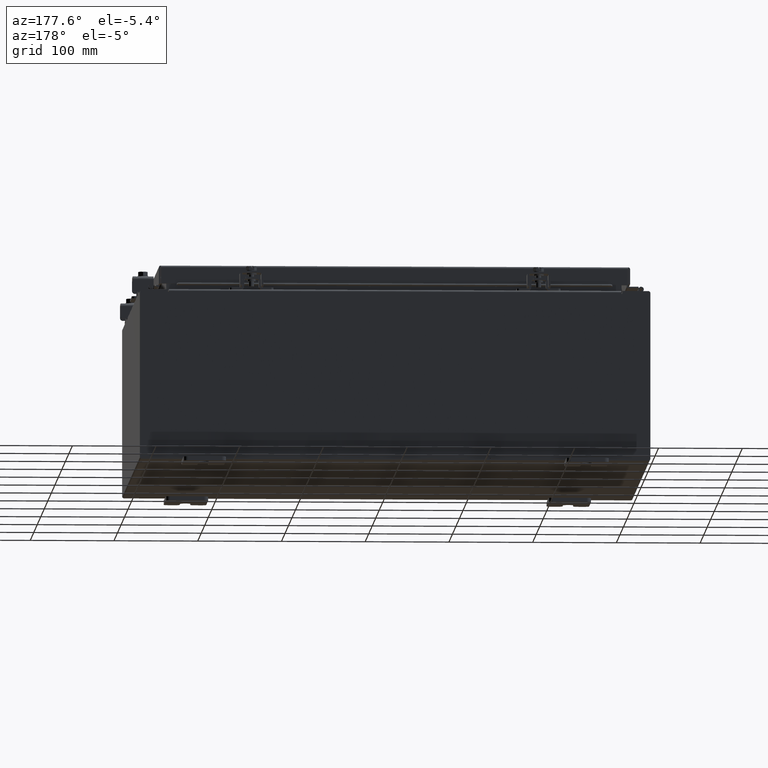
[diagram: clean part render]
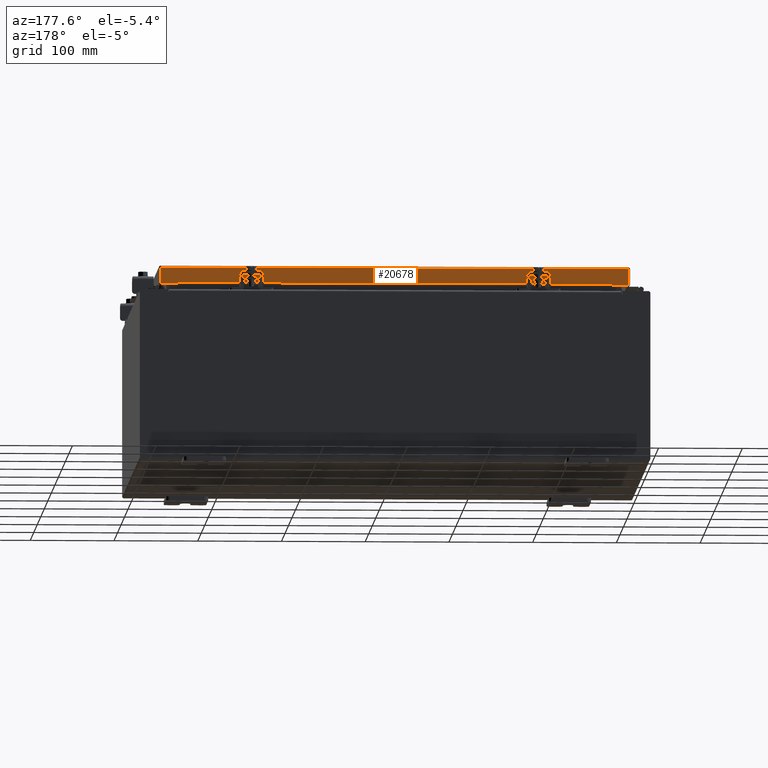
[diagram: same view with one face highlighted and labeled with its STEP entity id]
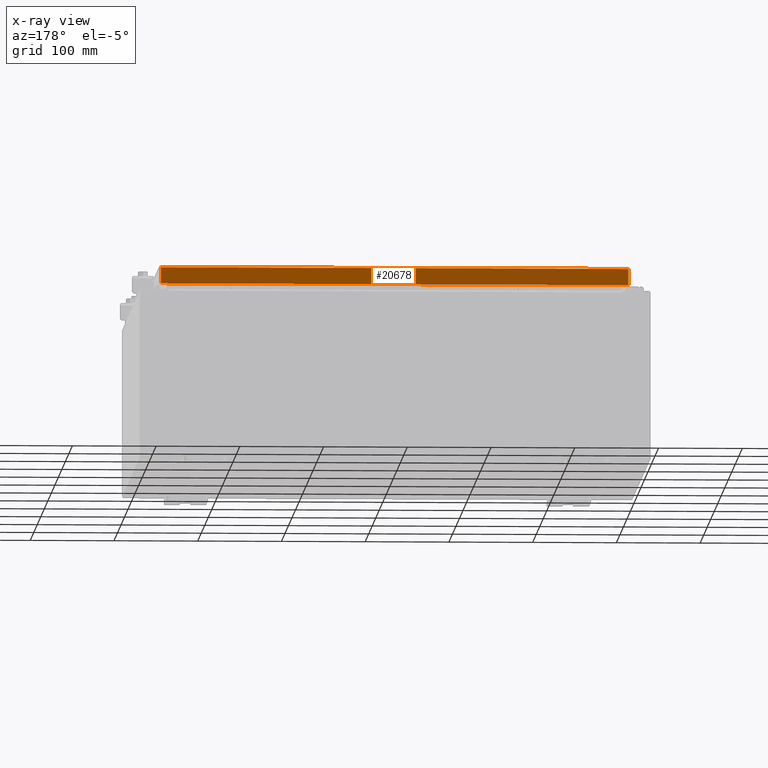
[diagram: x-ray of the same camera — body ghosted, the highlighted face saturated]
A machine part, auxiliary view. The second image highlights one B-rep face of the part: STEP entity #20678.
The next image is the same camera in x-ray: the body ghosted, the highlighted face saturated — about 0% of this face is hidden behind the body in this view.
In plain terms, the highlighted planar face has unit normal (0, -1, -0).
Its self-contained STEP definition (entity closure, byte-faithful):
#1523 = CARTESIAN_POINT ( 'NONE',  ( 10.98915786437626700, 9.094000000000001200, -0.8499999999999996400 ) ) ;
#1700 = VECTOR ( 'NONE', #28223, 39.37007874015748100 ) ;
#1713 = AXIS2_PLACEMENT_3D ( 'NONE', #24222, #12884, #28795 ) ;
#1966 = FACE_OUTER_BOUND ( 'NONE', #23642, .T. ) ;
#2339 = LINE ( 'NONE', #24076, #13716 ) ;
#3940 = CARTESIAN_POINT ( 'NONE',  ( 10.98915786437626900, 9.093999999999999400, 2.589571694958333800E-014 ) ) ;
#4043 = CARTESIAN_POINT ( 'NONE',  ( -11.07799999999999900, 9.094000000000001200, -0.8500000000000024200 ) ) ;
#5267 = VERTEX_POINT ( 'NONE', #18938 ) ;
#6705 = CARTESIAN_POINT ( 'NONE',  ( -11.07799999999999900, 9.093999999999999400, -0.08770000000000007000 ) ) ;
#7061 = CARTESIAN_POINT ( 'NONE',  ( -10.98915786437626900, 9.094000000000001200, -0.8500000000000024200 ) ) ;
#9938 = ORIENTED_EDGE ( 'NONE', *, *, #18967, .F. ) ;
#10030 = LINE ( 'NONE', #6705, #22115 ) ;
#10411 = LINE ( 'NONE', #23285, #15757 ) ;
#10588 = PLANE ( 'NONE',  #1713 ) ;
#10887 = EDGE_CURVE ( 'NONE', #12790, #16627, #2339, .T. ) ;
#12365 = ORIENTED_EDGE ( 'NONE', *, *, #16938, .F. ) ;
#12790 = VERTEX_POINT ( 'NONE', #22479 ) ;
#12884 = DIRECTION ( 'NONE',  ( 3.475696988576941300E-031, -1.000000000000000000, -2.818880942772350300E-015 ) ) ;
#13090 = DIRECTION ( 'NONE',  ( 0.0000000000000000000, 2.818880942772350300E-015, -1.000000000000000000 ) ) ;
#13162 = CARTESIAN_POINT ( 'NONE',  ( 10.23915786437625500, 9.093999999999995900, -0.8500000000000033100 ) ) ;
#13388 = EDGE_CURVE ( 'NONE', #5267, #28917, #13586, .T. ) ;
#13586 = LINE ( 'NONE', #3940, #18936 ) ;
#13716 = VECTOR ( 'NONE', #26376, 39.37007874015748100 ) ;
#14313 = EDGE_CURVE ( 'NONE', #16627, #28917, #25437, .T. ) ;
#14868 = ORIENTED_EDGE ( 'NONE', *, *, #26955, .F. ) ;
#15757 = VECTOR ( 'NONE', #25578, 39.37007874015748100 ) ;
#16176 = VERTEX_POINT ( 'NONE', #27439 ) ;
#16627 = VERTEX_POINT ( 'NONE', #13162 ) ;
#16886 = CARTESIAN_POINT ( 'NONE',  ( -11.07799999999999900, 9.094000000000001200, -0.8500000000000024200 ) ) ;
#16938 = EDGE_CURVE ( 'NONE', #5267, #16176, #10030, .T. ) ;
#18936 = VECTOR ( 'NONE', #13090, 39.37007874015748100 ) ;
#18938 = CARTESIAN_POINT ( 'NONE',  ( 10.98915786437626700, 9.093999999999999400, -0.08770000000000007000 ) ) ;
#18967 = EDGE_CURVE ( 'NONE', #24526, #12790, #26639, .T. ) ;
#20678 = ADVANCED_FACE ( 'NONE', ( #1966 ), #10588, .F. ) ;
#22115 = VECTOR ( 'NONE', #22626, 39.37007874015748100 ) ;
#22479 = CARTESIAN_POINT ( 'NONE',  ( -10.23915786437627100, 9.093999999999995900, -0.8500000000000033100 ) ) ;
#22626 = DIRECTION ( 'NONE',  ( -1.000000000000000000, -3.475696988576942200E-031, -9.473942235605600700E-046 ) ) ;
#23285 = CARTESIAN_POINT ( 'NONE',  ( -10.98915786437626900, 9.093999999999999400, -0.07469999999999978000 ) ) ;
#23642 = EDGE_LOOP ( 'NONE', ( #12365, #29060, #28140, #27897, #9938, #14868 ) ) ;
#24076 = CARTESIAN_POINT ( 'NONE',  ( -10.23915786437626700, 9.093999999999995900, -0.8500000000000033100 ) ) ;
#24222 = CARTESIAN_POINT ( 'NONE',  ( -3.160798841411870900E-030, 9.093999999999999400, 2.589571694958333800E-014 ) ) ;
#24526 = VERTEX_POINT ( 'NONE', #7061 ) ;
#24545 = DIRECTION ( 'NONE',  ( 1.000000000000000000, -4.379057701015054300E-047, 1.233005954894504400E-016 ) ) ;
#24712 = VECTOR ( 'NONE', #24545, 39.37007874015748100 ) ;
#25437 = LINE ( 'NONE', #4043, #24712 ) ;
#25578 = DIRECTION ( 'NONE',  ( -0.0000000000000000000, 2.818880942772350300E-015, -1.000000000000000000 ) ) ;
#26376 = DIRECTION ( 'NONE',  ( 1.000000000000000000, -0.0000000000000000000, -0.0000000000000000000 ) ) ;
#26639 = LINE ( 'NONE', #16886, #1700 ) ;
#26955 = EDGE_CURVE ( 'NONE', #16176, #24526, #10411, .T. ) ;
#27439 = CARTESIAN_POINT ( 'NONE',  ( -10.98915786437626700, 9.093999999999999400, -0.08770000000000007000 ) ) ;
#27897 = ORIENTED_EDGE ( 'NONE', *, *, #10887, .F. ) ;
#28140 = ORIENTED_EDGE ( 'NONE', *, *, #14313, .F. ) ;
#28223 = DIRECTION ( 'NONE',  ( 1.000000000000000000, -4.379057701015054300E-047, 1.233005954894504400E-016 ) ) ;
#28795 = DIRECTION ( 'NONE',  ( 0.0000000000000000000, 2.818880942772350300E-015, -1.000000000000000000 ) ) ;
#28917 = VERTEX_POINT ( 'NONE', #1523 ) ;
#29060 = ORIENTED_EDGE ( 'NONE', *, *, #13388, .T. ) ;